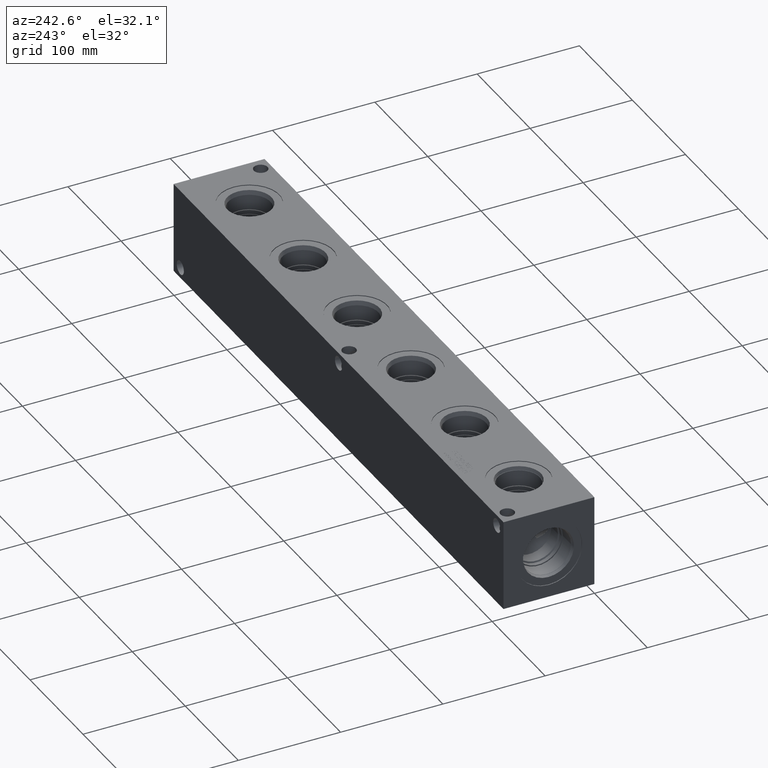
[diagram: clean part render]
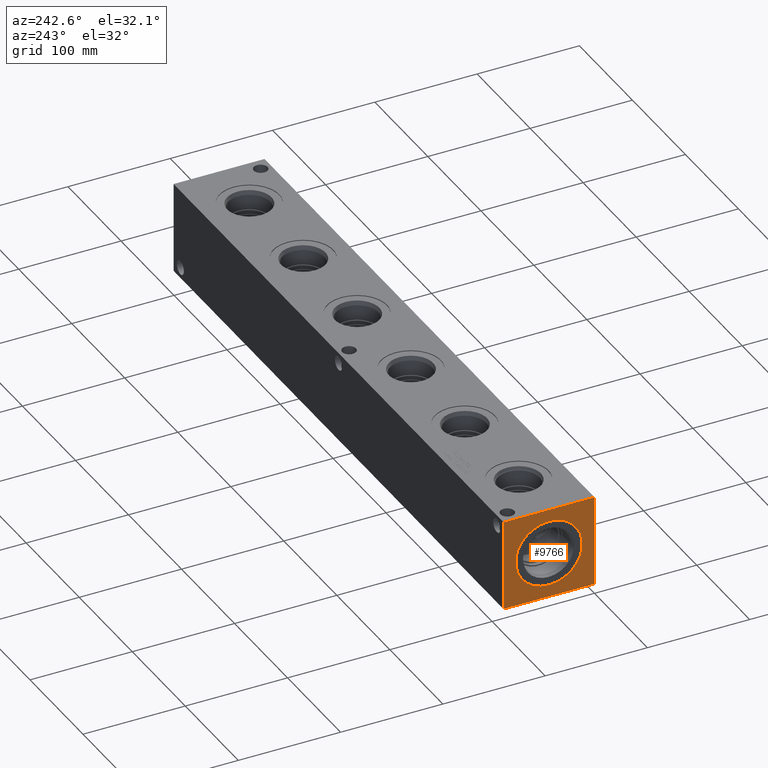
[diagram: same view with one face highlighted and labeled with its STEP entity id]
A machine part, auxiliary view. The second image highlights one B-rep face of the part: STEP entity #9766.
In plain terms, the highlighted planar face has unit normal (-1, 0, 0).
Its self-contained STEP definition (entity closure, byte-faithful):
#506=CIRCLE('',#10496,32.5628);
#507=CIRCLE('',#10497,32.5628);
#583=FACE_BOUND('',#2092,.T.);
#1512=FACE_OUTER_BOUND('',#2091,.T.);
#2091=EDGE_LOOP('',(#8658,#8659,#8660,#8661));
#2092=EDGE_LOOP('',(#8662,#8663));
#2367=LINE('',#15180,#3127);
#2871=LINE('',#17560,#3631);
#2872=LINE('',#17561,#3632);
#2873=LINE('',#17562,#3633);
#3127=VECTOR('',#10884,10.);
#3631=VECTOR('',#12716,10.);
#3632=VECTOR('',#12717,10.);
#3633=VECTOR('',#12718,10.);
#3953=VERTEX_POINT('',#15173);
#3956=VERTEX_POINT('',#15178);
#4545=VERTEX_POINT('',#17529);
#4546=VERTEX_POINT('',#17530);
#4555=VERTEX_POINT('',#17558);
#4556=VERTEX_POINT('',#17559);
#5038=EDGE_CURVE('',#3956,#3953,#2367,.T.);
#5921=EDGE_CURVE('',#4545,#4546,#506,.T.);
#5922=EDGE_CURVE('',#4546,#4545,#507,.T.);
#5935=EDGE_CURVE('',#4555,#4556,#2871,.T.);
#5936=EDGE_CURVE('',#4556,#3953,#2872,.T.);
#5937=EDGE_CURVE('',#4555,#3956,#2873,.T.);
#8658=ORIENTED_EDGE('',*,*,#5935,.T.);
#8659=ORIENTED_EDGE('',*,*,#5936,.T.);
#8660=ORIENTED_EDGE('',*,*,#5038,.F.);
#8661=ORIENTED_EDGE('',*,*,#5937,.F.);
#8662=ORIENTED_EDGE('',*,*,#5921,.T.);
#8663=ORIENTED_EDGE('',*,*,#5922,.T.);
#8948=PLANE('',#10510);
#9766=ADVANCED_FACE('',(#1512,#583),#8948,.T.);
#10496=AXIS2_PLACEMENT_3D('',#17531,#12682,#12683);
#10497=AXIS2_PLACEMENT_3D('',#17532,#12684,#12685);
#10510=AXIS2_PLACEMENT_3D('',#17557,#12714,#12715);
#10884=DIRECTION('',(0.,-1.,0.));
#12682=DIRECTION('center_axis',(1.,0.,0.));
#12683=DIRECTION('ref_axis',(0.,0.,1.));
#12684=DIRECTION('center_axis',(1.,0.,0.));
#12685=DIRECTION('ref_axis',(0.,0.,1.));
#12714=DIRECTION('center_axis',(-1.,0.,0.));
#12715=DIRECTION('ref_axis',(0.,-1.,0.));
#12716=DIRECTION('',(0.,-1.,0.));
#12717=DIRECTION('',(0.,0.,1.));
#12718=DIRECTION('',(0.,0.,1.));
#15173=CARTESIAN_POINT('',(0.,0.,88.9));
#15178=CARTESIAN_POINT('',(0.,88.9,88.9));
#15180=CARTESIAN_POINT('',(0.,88.9,88.9));
#17529=CARTESIAN_POINT('',(0.,44.45,77.0128));
#17530=CARTESIAN_POINT('',(0.,44.45,11.8872));
#17531=CARTESIAN_POINT('Origin',(0.,44.45,44.45));
#17532=CARTESIAN_POINT('Origin',(0.,44.45,44.45));
#17557=CARTESIAN_POINT('Origin',(0.,88.9,0.));
#17558=CARTESIAN_POINT('',(0.,88.9,0.));
#17559=CARTESIAN_POINT('',(0.,0.,0.));
#17560=CARTESIAN_POINT('',(0.,88.9,0.));
#17561=CARTESIAN_POINT('',(0.,0.,0.));
#17562=CARTESIAN_POINT('',(0.,88.9,0.));